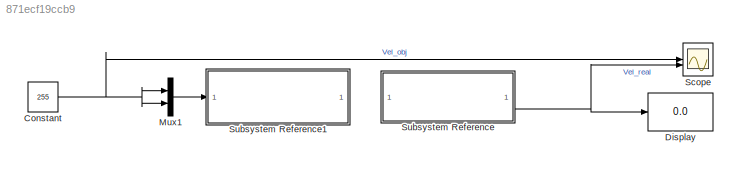
MODEL slx_871ecf19ccb9
KIND model
CONFIG AbsTol = auto
CONFIG EnableMultiTasking = on
CONFIG FixedStep = auto
CONFIG MaxStep = auto
CONFIG MinStep = auto
CONFIG RelTol = 1e-3
CONFIG SampleTimeConstraint = Unconstrained
CONFIG SolverName = FixedStepAuto
CONFIG StartTime = 0.0
CONFIG StopTime = 10.0
BLOCK [Constant] Constant
  Value = 255
BLOCK [Display] Display
  Decimation = 1
BLOCK [Mux] Mux1
  DisplayOption = bar
  Inputs = 2
BLOCK [Scope] Scope
  Floating = off
  NumInputPorts = 2
  ScopeSpecificationString = Simulink.scopes.TimeScopeBlockCfg('CurrentConfiguration', extmgr.ConfigurationSet(extmgr.Configuration('Core','General UI',true),extmgr.Configuration('Core','Source UI',true),extmgr.Configuration('Sources','WiredSimulink',true),extmgr.Configuration('Visuals','Time Domain',true,'SerializedDisplays',{struct('MinYLimReal','-318.75','MaxYLimReal','318.75','YLabelReal','','MinYLimMag',' 0.00000','MaxYL...<+2008ch>
BLOCK [SubSystem] Subsystem Reference
  ReferencedSubsystem = Sub_Encoders
BLOCK [SubSystem] Subsystem Reference1
  ReferencedSubsystem = Sub_Motores
NET Constant:1 -> Mux1:1, Mux1:2, Scope:1
LINE Mux1:1 -> Subsystem Reference1:1
NET Subsystem Reference:3 -> Display:1, Scope:2
note: NET lines group one-source signal fan-out (src -> all destinations, sorted); 1:1 wires keep LINE
